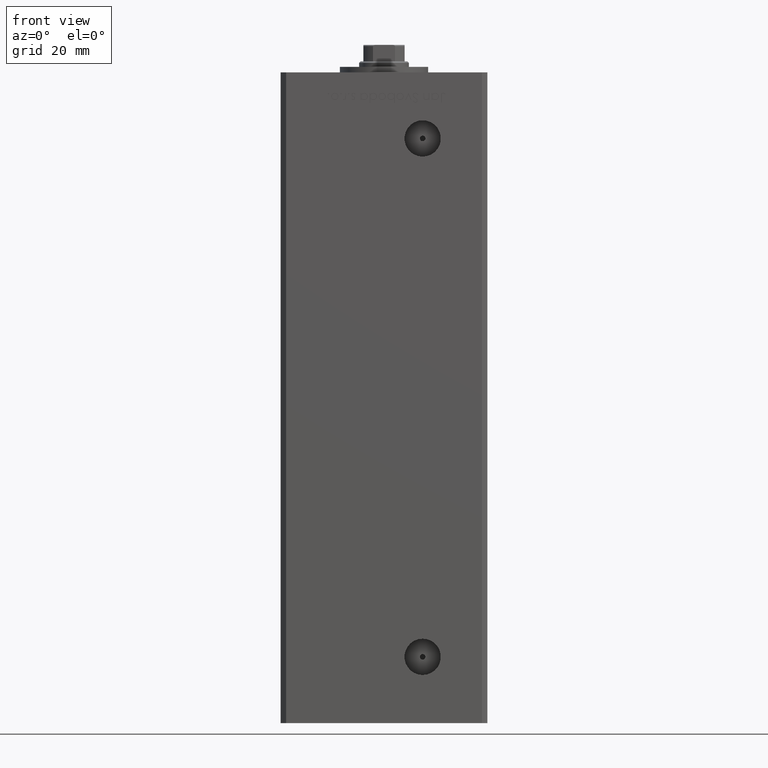
[diagram: clean part render]
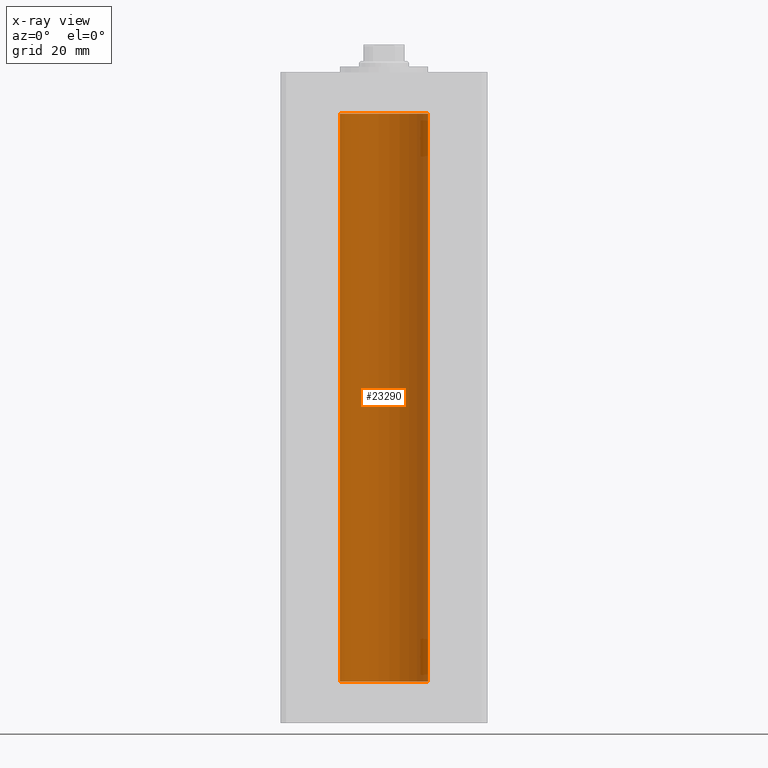
[diagram: x-ray — body ghosted, one internal face saturated and labeled with its STEP entity id]
A machine part, front view, then the same camera in x-ray: the body is ghosted and one INTERNAL B-rep face — a face not visible from any outside direction — is saturated and labeled: STEP entity #23290.
In plain terms, the highlighted cylindrical surface (partial cylindrical patch) has radius 16 mm, axis along (-0, -0, -1).
Its self-contained STEP definition (entity closure, byte-faithful):
#474 = DIRECTION ( 'NONE',  ( -0.000000000000000000, -0.000000000000000000, -1.000000000000000000 ) ) ;
#1301 = VERTEX_POINT ( 'NONE', #1878 ) ;
#1878 = CARTESIAN_POINT ( 'NONE',  ( -16.00000000000000000, 0.000000000000000000, 206.0000000000000000 ) ) ;
#3043 = CARTESIAN_POINT ( 'NONE',  ( 0.000000000000000000, 0.000000000000000000, 206.0000000000000000 ) ) ;
#4575 = CARTESIAN_POINT ( 'NONE',  ( 16.00000000000000000, 1.959434878635765131E-15, 206.0000000000000000 ) ) ;
#6105 = EDGE_CURVE ( 'NONE', #1301, #46172, #44812, .T. ) ;
#6988 = DIRECTION ( 'NONE',  ( -1.000000000000000000, 0.000000000000000000, 0.000000000000000000 ) ) ;
#7884 = CARTESIAN_POINT ( 'NONE',  ( 0.000000000000000000, 0.000000000000000000, 0.000000000000000000 ) ) ;
#7892 = ORIENTED_EDGE ( 'NONE', *, *, #43132, .F. ) ;
#12703 = VERTEX_POINT ( 'NONE', #18696 ) ;
#12994 = CIRCLE ( 'NONE', #17209, 16.00000000000000000 ) ;
#13607 = CARTESIAN_POINT ( 'NONE',  ( 0.000000000000000000, 0.000000000000000000, 206.0000000000000000 ) ) ;
#15536 = CIRCLE ( 'NONE', #18909, 16.00000000000000000 ) ;
#17209 = AXIS2_PLACEMENT_3D ( 'NONE', #7884, #35636, #43785 ) ;
#18696 = CARTESIAN_POINT ( 'NONE',  ( 16.00000000000000000, 1.959434878635765131E-15, 0.000000000000000000 ) ) ;
#18899 = AXIS2_PLACEMENT_3D ( 'NONE', #3043, #43426, #6988 ) ;
#18909 = AXIS2_PLACEMENT_3D ( 'NONE', #13607, #33934, #49989 ) ;
#20439 = EDGE_LOOP ( 'NONE', ( #51408, #40373, #33946, #7892 ) ) ;
#23290 = ADVANCED_FACE ( 'NONE', ( #32087 ), #23649, .F. ) ;
#23649 = CYLINDRICAL_SURFACE ( 'NONE', #18899, 16.00000000000000000 ) ;
#24773 = CARTESIAN_POINT ( 'NONE',  ( -16.00000000000000000, 0.000000000000000000, 206.0000000000000000 ) ) ;
#27784 = VECTOR ( 'NONE', #28376, 1000.000000000000000 ) ;
#28376 = DIRECTION ( 'NONE',  ( -0.000000000000000000, -0.000000000000000000, -1.000000000000000000 ) ) ;
#32087 = FACE_OUTER_BOUND ( 'NONE', #20439, .T. ) ;
#33934 = DIRECTION ( 'NONE',  ( -0.000000000000000000, 0.000000000000000000, 1.000000000000000000 ) ) ;
#33946 = ORIENTED_EDGE ( 'NONE', *, *, #6105, .T. ) ;
#34241 = CARTESIAN_POINT ( 'NONE',  ( -16.00000000000000000, 0.000000000000000000, 0.000000000000000000 ) ) ;
#35306 = CARTESIAN_POINT ( 'NONE',  ( 16.00000000000000000, 1.959434878635765131E-15, 206.0000000000000000 ) ) ;
#35636 = DIRECTION ( 'NONE',  ( -0.000000000000000000, 0.000000000000000000, 1.000000000000000000 ) ) ;
#36328 = VERTEX_POINT ( 'NONE', #35306 ) ;
#39634 = EDGE_CURVE ( 'NONE', #36328, #12703, #41011, .T. ) ;
#40373 = ORIENTED_EDGE ( 'NONE', *, *, #43655, .T. ) ;
#41011 = LINE ( 'NONE', #4575, #27784 ) ;
#43010 = VECTOR ( 'NONE', #474, 1000.000000000000000 ) ;
#43132 = EDGE_CURVE ( 'NONE', #12703, #46172, #12994, .T. ) ;
#43426 = DIRECTION ( 'NONE',  ( -0.000000000000000000, -0.000000000000000000, -1.000000000000000000 ) ) ;
#43655 = EDGE_CURVE ( 'NONE', #36328, #1301, #15536, .T. ) ;
#43785 = DIRECTION ( 'NONE',  ( 1.000000000000000000, 0.000000000000000000, 0.000000000000000000 ) ) ;
#44812 = LINE ( 'NONE', #24773, #43010 ) ;
#46172 = VERTEX_POINT ( 'NONE', #34241 ) ;
#49989 = DIRECTION ( 'NONE',  ( 1.000000000000000000, 0.000000000000000000, 0.000000000000000000 ) ) ;
#51408 = ORIENTED_EDGE ( 'NONE', *, *, #39634, .F. ) ;